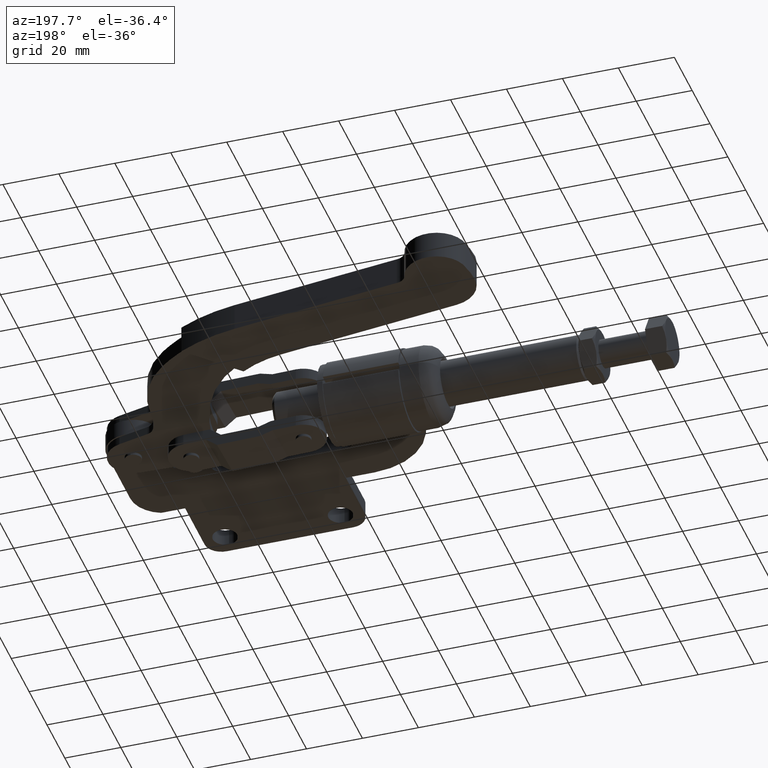
[diagram: clean part render]
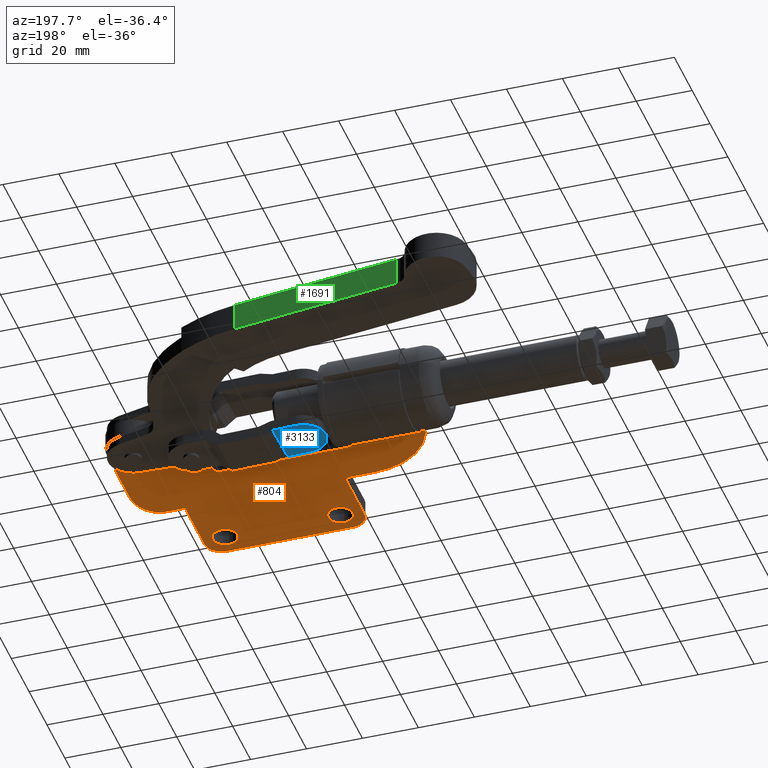
[diagram: same view with three faces highlighted in distinct colors, each labeled with its STEP entity id]
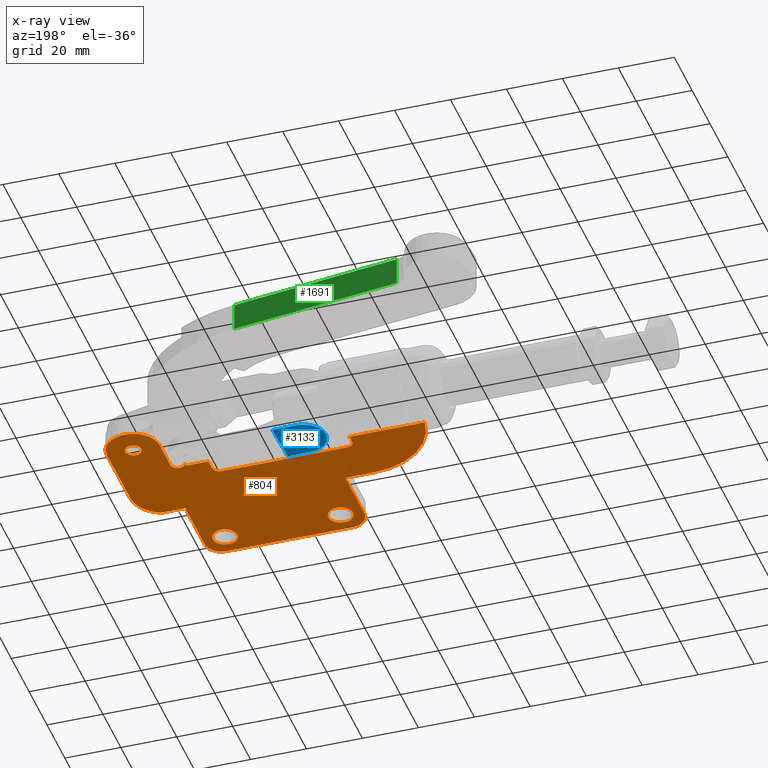
[diagram: x-ray of the same camera — body ghosted, the three highlighted faces saturated]
A machine part, auxiliary view with three faces highlighted in distinct colors.
The next image is the same camera in x-ray (body ghosted, the three faces saturated) — at least one of them is partly hidden behind the body in this view.
Their STEP definitions:

[orange] entity #804 — the highlighted planar face has unit normal (0, -0, -1).
#112 = VERTEX_POINT ( 'NONE', #5971 ) ;
#124 = CARTESIAN_POINT ( 'NONE',  ( -109.0000000000000000, 4.200000000001617600, -3.000000000000006200 ) ) ;
#160 = CARTESIAN_POINT ( 'NONE',  ( -7.250000000000006200, 4.180131579734284000, -2.999999999999984000 ) ) ;
#203 = CARTESIAN_POINT ( 'NONE',  ( -16.25000000000001100, -17.59999999999993000, -2.999999999999980500 ) ) ;
#214 = AXIS2_PLACEMENT_3D ( 'NONE', #7111, #8506, #3740 ) ;
#280 = LINE ( 'NONE', #124, #1846 ) ;
#335 = VERTEX_POINT ( 'NONE', #6947 ) ;
#357 = AXIS2_PLACEMENT_3D ( 'NONE', #7686, #1502, #3072 ) ;
#404 = CARTESIAN_POINT ( 'NONE',  ( -5.963785294056692600E-015, -23.59999999999998000, -2.999999999999974200 ) ) ;
#407 = AXIS2_PLACEMENT_3D ( 'NONE', #493, #5938, #1151 ) ;
#410 = AXIS2_PLACEMENT_3D ( 'NONE', #8006, #3957, #8680 ) ;
#422 = CARTESIAN_POINT ( 'NONE',  ( -6.632134760864691900, 41.20000000000002400, -3.000000000000028400 ) ) ;
#449 = AXIS2_PLACEMENT_3D ( 'NONE', #3915, #3198, #6546 ) ;
#462 = CARTESIAN_POINT ( 'NONE',  ( -40.58836422143850300, 27.40000000000002300, -2.999999999999964900 ) ) ;
#493 = CARTESIAN_POINT ( 'NONE',  ( -79.50000000000484600, 23.20000000000014500, -3.000000000000021800 ) ) ;
#503 = VERTEX_POINT ( 'NONE', #2097 ) ;
#510 = EDGE_CURVE ( 'NONE', #6389, #503, #5581, .T. ) ;
#522 = VERTEX_POINT ( 'NONE', #2953 ) ;
#541 = CARTESIAN_POINT ( 'NONE',  ( -19.00000000000097000, 29.29999999999998300, -3.000000000000034600 ) ) ;
#650 = EDGE_LOOP ( 'NONE', ( #3309, #7417 ) ) ;
#705 = CARTESIAN_POINT ( 'NONE',  ( -32.00000000000473900, 23.20000000000007400, -3.000000000000024400 ) ) ;
#713 = ORIENTED_EDGE ( 'NONE', *, *, #2009, .F. ) ;
#723 = CIRCLE ( 'NONE', #910, 2.499999999999426200 ) ;
#725 = CIRCLE ( 'NONE', #967, 6.000000000000001800 ) ;
#730 = DIRECTION ( 'NONE',  ( -1.000000000000000000, 1.497259106820870000E-015, -8.633825298910366700E-017 ) ) ;
#749 = EDGE_CURVE ( 'NONE', #1611, #7322, #1100, .T. ) ;
#753 = DIRECTION ( 'NONE',  ( 0.0000000000000000000, -1.000000000000000000, 7.885106708985478200E-016 ) ) ;
#772 = CARTESIAN_POINT ( 'NONE',  ( -73.45000000000503300, -17.59999999999991300, -2.999999999999985800 ) ) ;
#804 = ADVANCED_FACE ( 'NONE', ( #7720, #2493, #6329, #5907 ), #8061, .T. ) ;
#849 = EDGE_CURVE ( 'NONE', #2248, #5280, #280, .T. ) ;
#865 = ORIENTED_EDGE ( 'NONE', *, *, #2074, .T. ) ;
#902 = DIRECTION ( 'NONE',  ( -8.633825298910245900E-017, 8.048628660897816600E-016, 1.000000000000000000 ) ) ;
#910 = AXIS2_PLACEMENT_3D ( 'NONE', #1074, #5853, #1763 ) ;
#929 = VERTEX_POINT ( 'NONE', #2840 ) ;
#933 = CARTESIAN_POINT ( 'NONE',  ( -24.20000000000504800, -20.04999999999997600, -2.999999999999979100 ) ) ;
#967 = AXIS2_PLACEMENT_3D ( 'NONE', #1741, #6495, #2439 ) ;
#993 = CIRCLE ( 'NONE', #4297, 4.400000000000001200 ) ;
#1069 = CARTESIAN_POINT ( 'NONE',  ( -16.25000000000000700, 4.200000000001606900, -2.999999999999997800 ) ) ;
#1074 = CARTESIAN_POINT ( 'NONE',  ( -21.49999999999944900, 29.29999999999998600, -3.000000000000020900 ) ) ;
#1075 = AXIS2_PLACEMENT_3D ( 'NONE', #3126, #3037, #2469 ) ;
#1082 = ORIENTED_EDGE ( 'NONE', *, *, #4182, .F. ) ;
#1089 = VECTOR ( 'NONE', #7358, 1000.000000000000000 ) ;
#1100 = LINE ( 'NONE', #404, #8103 ) ;
#1110 = AXIS2_PLACEMENT_3D ( 'NONE', #4527, #7270, #4544 ) ;
#1131 = DIRECTION ( 'NONE',  ( 8.633825298910245900E-017, -8.066072710864628300E-016, -1.000000000000000000 ) ) ;
#1151 = DIRECTION ( 'NONE',  ( 0.0000000000000000000, -1.000000000000000000, 8.673617379884125200E-016 ) ) ;
#1176 = EDGE_CURVE ( 'NONE', #8072, #4409, #8729, .T. ) ;
#1203 = LINE ( 'NONE', #7129, #4847 ) ;
#1226 = CARTESIAN_POINT ( 'NONE',  ( -0.1499999999999810400, 41.20000000000003800, -3.000000000000020400 ) ) ;
#1228 = EDGE_CURVE ( 'NONE', #5076, #7968, #2903, .T. ) ;
#1288 = ORIENTED_EDGE ( 'NONE', *, *, #2785, .T. ) ;
#1306 = ORIENTED_EDGE ( 'NONE', *, *, #8312, .F. ) ;
#1422 = EDGE_LOOP ( 'NONE', ( #3969, #865 ) ) ;
#1454 = CARTESIAN_POINT ( 'NONE',  ( -108.9655025418542500, 26.30000000000010000, -3.000000000000026600 ) ) ;
#1502 = DIRECTION ( 'NONE',  ( -8.633825298910245900E-017, 8.048628660897816600E-016, 1.000000000000000000 ) ) ;
#1514 = DIRECTION ( 'NONE',  ( -2.636779683484748300E-016, -1.000000000000000000, 8.048628660897816600E-016 ) ) ;
#1523 = EDGE_CURVE ( 'NONE', #4857, #2984, #5489, .T. ) ;
#1524 = CIRCLE ( 'NONE', #357, 5.999999999999998200 ) ;
#1545 = DIRECTION ( 'NONE',  ( 1.000000000000000000, -2.636779683484747800E-016, 8.633825298910266800E-017 ) ) ;
#1582 = CARTESIAN_POINT ( 'NONE',  ( -24.20000000000504800, -11.24999999999997200, -2.999999999999986200 ) ) ;
#1602 = CIRCLE ( 'NONE', #7454, 4.400000000000001200 ) ;
#1607 = ORIENTED_EDGE ( 'NONE', *, *, #849, .F. ) ;
#1611 = VERTEX_POINT ( 'NONE', #6145 ) ;
#1641 = ORIENTED_EDGE ( 'NONE', *, *, #510, .T. ) ;
#1717 = EDGE_CURVE ( 'NONE', #7322, #5076, #1524, .T. ) ;
#1731 = LINE ( 'NONE', #160, #3567 ) ;
#1741 = CARTESIAN_POINT ( 'NONE',  ( -67.45000000000503300, -17.59999999999996200, -2.999999999999984900 ) ) ;
#1763 = DIRECTION ( 'NONE',  ( -1.387778780781764200E-015, -1.000000000000000000, 8.673617379886026400E-016 ) ) ;
#1846 = VECTOR ( 'NONE', #7523, 1000.000000000000000 ) ;
#1885 = VERTEX_POINT ( 'NONE', #3589 ) ;
#1927 = AXIS2_PLACEMENT_3D ( 'NONE', #4978, #902, #5669 ) ;
#1948 = CIRCLE ( 'NONE', #1110, 2.499999999999426200 ) ;
#1969 = VECTOR ( 'NONE', #1514, 1000.000000000000000 ) ;
#2009 = EDGE_CURVE ( 'NONE', #4723, #2248, #8438, .T. ) ;
#2036 = DIRECTION ( 'NONE',  ( -2.636779683484748800E-016, -1.000000000000000000, 8.066072710864628300E-016 ) ) ;
#2071 = CARTESIAN_POINT ( 'NONE',  ( -82.00000000000477500, 50.70000000000010900, -3.000000000000040900 ) ) ;
#2074 = EDGE_CURVE ( 'NONE', #7246, #4919, #993, .T. ) ;
#2097 = CARTESIAN_POINT ( 'NONE',  ( -0.1499999999999931100, 15.20000000000107200, -3.000000000000005300 ) ) ;
#2187 = ORIENTED_EDGE ( 'NONE', *, *, #3563, .F. ) ;
#2197 = CIRCLE ( 'NONE', #7326, 2.867865239135299200 ) ;
#2199 = LINE ( 'NONE', #2071, #5592 ) ;
#2216 = DIRECTION ( 'NONE',  ( -8.633825298910245900E-017, 8.048628660897816600E-016, 1.000000000000000000 ) ) ;
#2248 = VERTEX_POINT ( 'NONE', #5117 ) ;
#2349 = CARTESIAN_POINT ( 'NONE',  ( -22.25000000000005700, -23.59999999999997300, -2.999999999999975600 ) ) ;
#2378 = VECTOR ( 'NONE', #8650, 1000.000000000000000 ) ;
#2385 = DIRECTION ( 'NONE',  ( 2.636779683484748300E-016, 1.000000000000000000, -8.066072710864628300E-016 ) ) ;
#2439 = DIRECTION ( 'NONE',  ( 0.0000000000000000000, -1.000000000000000000, 7.950815931560363500E-016 ) ) ;
#2469 = DIRECTION ( 'NONE',  ( 0.0000000000000000000, -1.000000000000000000, 8.114388797713995800E-016 ) ) ;
#2479 = AXIS2_PLACEMENT_3D ( 'NONE', #8587, #8467, #5252 ) ;
#2493 = FACE_BOUND ( 'NONE', #1422, .T. ) ;
#2586 = EDGE_CURVE ( 'NONE', #4807, #7968, #1731, .T. ) ;
#2593 = CARTESIAN_POINT ( 'NONE',  ( -16.25000000000000700, 1.870178387393377400E-015, -2.999999999999994200 ) ) ;
#2692 = VECTOR ( 'NONE', #2385, 1000.000000000000000 ) ;
#2695 = ORIENTED_EDGE ( 'NONE', *, *, #4916, .T. ) ;
#2785 = EDGE_CURVE ( 'NONE', #5428, #1885, #4083, .T. ) ;
#2787 = CARTESIAN_POINT ( 'NONE',  ( -9.574999999999974400, 41.62520474801519300, -3.000000000000021300 ) ) ;
#2791 = CARTESIAN_POINT ( 'NONE',  ( -0.1499999999999837300, 50.70000000000008800, -3.000000000000033800 ) ) ;
#2840 = CARTESIAN_POINT ( 'NONE',  ( -21.49999999999944900, 26.80000000000055800, -3.000000000000018700 ) ) ;
#2867 = LINE ( 'NONE', #4139, #4274 ) ;
#2897 = ORIENTED_EDGE ( 'NONE', *, *, #3329, .T. ) ;
#2903 = LINE ( 'NONE', #2593, #1089 ) ;
#2953 = CARTESIAN_POINT ( 'NONE',  ( -0.5732896807037204400, 44.45020658964465100, -3.000000000000030600 ) ) ;
#2959 = CARTESIAN_POINT ( 'NONE',  ( -65.50000000000504500, -15.64999999999996300, -2.999999999999986200 ) ) ;
#2984 = VERTEX_POINT ( 'NONE', #705 ) ;
#3005 = LINE ( 'NONE', #7008, #2378 ) ;
#3037 = DIRECTION ( 'NONE',  ( -8.633825298910245900E-017, 8.066072710864628300E-016, 1.000000000000000000 ) ) ;
#3072 = DIRECTION ( 'NONE',  ( 0.0000000000000000000, -1.000000000000000000, 7.950815931560368500E-016 ) ) ;
#3126 = CARTESIAN_POINT ( 'NONE',  ( -84.02807541134794200, 29.31957628709033500, -3.000000000000026600 ) ) ;
#3127 = CARTESIAN_POINT ( 'NONE',  ( -32.00000000000488100, 27.40000000000002000, -2.999999999999964000 ) ) ;
#3171 = ORIENTED_EDGE ( 'NONE', *, *, #3270, .T. ) ;
#3198 = DIRECTION ( 'NONE',  ( -8.633825298910245900E-017, 8.066072710864628300E-016, 1.000000000000000000 ) ) ;
#3210 = EDGE_CURVE ( 'NONE', #2984, #6072, #7404, .T. ) ;
#3251 = DIRECTION ( 'NONE',  ( -2.636779683484748300E-016, -1.000000000000000000, 8.066072710864628300E-016 ) ) ;
#3270 = EDGE_CURVE ( 'NONE', #503, #4807, #8753, .T. ) ;
#3309 = ORIENTED_EDGE ( 'NONE', *, *, #7786, .T. ) ;
#3329 = EDGE_CURVE ( 'NONE', #522, #6389, #6756, .T. ) ;
#3423 = ORIENTED_EDGE ( 'NONE', *, *, #4019, .F. ) ;
#3443 = ORIENTED_EDGE ( 'NONE', *, *, #1523, .F. ) ;
#3445 = ORIENTED_EDGE ( 'NONE', *, *, #8595, .F. ) ;
#3563 = EDGE_CURVE ( 'NONE', #5280, #4465, #3583, .T. ) ;
#3564 = EDGE_CURVE ( 'NONE', #7582, #8627, #2197, .T. ) ;
#3567 = VECTOR ( 'NONE', #6402, 1000.000000000000100 ) ;
#3583 = LINE ( 'NONE', #5576, #1969 ) ;
#3589 = CARTESIAN_POINT ( 'NONE',  ( -23.99999999999887700, 29.29999999999998600, -3.000000000000014200 ) ) ;
#3740 = DIRECTION ( 'NONE',  ( -2.775557561562857800E-015, -1.000000000000000000, 8.673617379883930900E-016 ) ) ;
#3745 = CARTESIAN_POINT ( 'NONE',  ( -73.45000000000503300, 4.200000000001607800, -3.000000000000003100 ) ) ;
#3792 = VECTOR ( 'NONE', #2036, 1000.000000000000000 ) ;
#3883 = CIRCLE ( 'NONE', #7387, 4.400000000000004800 ) ;
#3915 = CARTESIAN_POINT ( 'NONE',  ( -9.500000000000001800, 41.20000000000001000, -3.000000000000029300 ) ) ;
#3957 = DIRECTION ( 'NONE',  ( -8.633825298910245900E-017, 8.066072710864628300E-016, 1.000000000000000000 ) ) ;
#3969 = ORIENTED_EDGE ( 'NONE', *, *, #5832, .T. ) ;
#4019 = EDGE_CURVE ( 'NONE', #112, #4723, #1203, .T. ) ;
#4033 = DIRECTION ( 'NONE',  ( 0.0000000000000000000, 1.000000000000000000, -7.561039882141786300E-016 ) ) ;
#4075 = ORIENTED_EDGE ( 'NONE', *, *, #5082, .F. ) ;
#4083 = LINE ( 'NONE', #5533, #2692 ) ;
#4139 = CARTESIAN_POINT ( 'NONE',  ( -109.0000000000000400, 20.70000000000018400, -3.000000000000019500 ) ) ;
#4173 = CIRCLE ( 'NONE', #449, 9.500000000000008900 ) ;
#4182 = EDGE_CURVE ( 'NONE', #4409, #112, #2199, .T. ) ;
#4225 = DIRECTION ( 'NONE',  ( -8.633825298910245900E-017, 8.048628660897816600E-016, 1.000000000000000000 ) ) ;
#4274 = VECTOR ( 'NONE', #730, 1000.000000000000000 ) ;
#4297 = AXIS2_PLACEMENT_3D ( 'NONE', #8214, #4689, #7180 ) ;
#4306 = VERTEX_POINT ( 'NONE', #6540 ) ;
#4409 = VERTEX_POINT ( 'NONE', #7419 ) ;
#4465 = VERTEX_POINT ( 'NONE', #772 ) ;
#4475 = CARTESIAN_POINT ( 'NONE',  ( -23.99999999999981900, 27.40000000000001600, -3.000000000000017300 ) ) ;
#4527 = CARTESIAN_POINT ( 'NONE',  ( -21.49999999999944900, 29.29999999999998600, -3.000000000000020900 ) ) ;
#4544 = DIRECTION ( 'NONE',  ( 0.0000000000000000000, -1.000000000000000000, 8.673617379886026400E-016 ) ) ;
#4610 = ORIENTED_EDGE ( 'NONE', *, *, #749, .F. ) ;
#4660 = CARTESIAN_POINT ( 'NONE',  ( -34.50000000000479600, 20.70000000000004900, -3.000000000000014700 ) ) ;
#4689 = DIRECTION ( 'NONE',  ( -8.633825298910245900E-017, 8.048628660897816600E-016, 1.000000000000000000 ) ) ;
#4723 = VERTEX_POINT ( 'NONE', #1454 ) ;
#4751 = EDGE_CURVE ( 'NONE', #4306, #7268, #3883, .T. ) ;
#4770 = CIRCLE ( 'NONE', #410, 2.867865239135299200 ) ;
#4807 = VERTEX_POINT ( 'NONE', #6058 ) ;
#4833 = VECTOR ( 'NONE', #5939, 1000.000000000000000 ) ;
#4847 = VECTOR ( 'NONE', #7107, 1000.000000000000000 ) ;
#4857 = VERTEX_POINT ( 'NONE', #3127 ) ;
#4882 = ORIENTED_EDGE ( 'NONE', *, *, #5758, .F. ) ;
#4901 = DIRECTION ( 'NONE',  ( 0.0000000000000000000, -1.000000000000000000, 7.885106708985484100E-016 ) ) ;
#4916 = EDGE_CURVE ( 'NONE', #4857, #5428, #8433, .T. ) ;
#4919 = VERTEX_POINT ( 'NONE', #933 ) ;
#4978 = CARTESIAN_POINT ( 'NONE',  ( -65.50000000000504500, -15.64999999999996300, -2.999999999999986200 ) ) ;
#5076 = VERTEX_POINT ( 'NONE', #203 ) ;
#5082 = EDGE_CURVE ( 'NONE', #929, #1885, #1948, .T. ) ;
#5102 = VERTEX_POINT ( 'NONE', #541 ) ;
#5117 = CARTESIAN_POINT ( 'NONE',  ( -84.02807541134795600, 4.200000000001615800, -3.000000000000003600 ) ) ;
#5170 = ORIENTED_EDGE ( 'NONE', *, *, #1717, .F. ) ;
#5215 = ORIENTED_EDGE ( 'NONE', *, *, #3210, .F. ) ;
#5227 = CARTESIAN_POINT ( 'NONE',  ( -79.50000000000484600, 20.70000000000014100, -3.000000000000018700 ) ) ;
#5252 = DIRECTION ( 'NONE',  ( 1.463901667490970200E-015, -1.000000000000000000, 8.051459171200335300E-016 ) ) ;
#5280 = VERTEX_POINT ( 'NONE', #3745 ) ;
#5298 = CIRCLE ( 'NONE', #1927, 4.400000000000004800 ) ;
#5306 = CARTESIAN_POINT ( 'NONE',  ( -12.36786523913528900, 41.20000000000002400, -3.000000000000029300 ) ) ;
#5395 = CARTESIAN_POINT ( 'NONE',  ( -9.499999999999991100, 41.20000000000002400, -3.000000000000028900 ) ) ;
#5421 = DIRECTION ( 'NONE',  ( -2.941896325621044400E-015, -1.000000000000000000, 8.274083415809187400E-016 ) ) ;
#5428 = VERTEX_POINT ( 'NONE', #4475 ) ;
#5489 = LINE ( 'NONE', #6014, #7092 ) ;
#5519 = DIRECTION ( 'NONE',  ( -8.633825298910245900E-017, 8.066072710864628300E-016, 1.000000000000000000 ) ) ;
#5533 = CARTESIAN_POINT ( 'NONE',  ( -23.99999999999981200, 50.70000000000009500, -3.000000000000036000 ) ) ;
#5576 = CARTESIAN_POINT ( 'NONE',  ( -73.45000000000503300, 1.695255817692746200E-014, -2.999999999999999600 ) ) ;
#5581 = LINE ( 'NONE', #2791, #3792 ) ;
#5592 = VECTOR ( 'NONE', #6809, 1000.000000000000000 ) ;
#5669 = DIRECTION ( 'NONE',  ( 0.0000000000000000000, -1.000000000000000000, 7.885106708985478200E-016 ) ) ;
#5678 = AXIS2_PLACEMENT_3D ( 'NONE', #2787, #1131, #5421 ) ;
#5758 = EDGE_CURVE ( 'NONE', #335, #5102, #3005, .T. ) ;
#5759 = AXIS2_PLACEMENT_3D ( 'NONE', #8493, #6510, #3251 ) ;
#5832 = EDGE_CURVE ( 'NONE', #4919, #7246, #1602, .T. ) ;
#5853 = DIRECTION ( 'NONE',  ( 8.633825298910245900E-017, -8.066072710864628300E-016, -1.000000000000000000 ) ) ;
#5874 = EDGE_CURVE ( 'NONE', #522, #335, #4173, .T. ) ;
#5907 = FACE_BOUND ( 'NONE', #8331, .T. ) ;
#5938 = DIRECTION ( 'NONE',  ( 8.633825298910245900E-017, -8.066072710864628300E-016, -1.000000000000000000 ) ) ;
#5939 = DIRECTION ( 'NONE',  ( 1.000000000000000000, -2.636779683484747800E-016, 8.633825298910266800E-017 ) ) ;
#5971 = CARTESIAN_POINT ( 'NONE',  ( -82.00000000000477500, 26.30000000000009300, -3.000000000000016900 ) ) ;
#6014 = CARTESIAN_POINT ( 'NONE',  ( -32.00000000000548500, 50.70000000000217700, -3.000000000000036400 ) ) ;
#6058 = CARTESIAN_POINT ( 'NONE',  ( -7.640641571138329100, 4.180993960946423700, -2.999999999999984500 ) ) ;
#6072 = VERTEX_POINT ( 'NONE', #4660 ) ;
#6145 = CARTESIAN_POINT ( 'NONE',  ( -67.45000000000499100, -23.59999999999996200, -2.999999999999979600 ) ) ;
#6329 = FACE_OUTER_BOUND ( 'NONE', #7570, .T. ) ;
#6361 = CARTESIAN_POINT ( 'NONE',  ( -65.50000000000504500, -20.04999999999996900, -2.999999999999982700 ) ) ;
#6389 = VERTEX_POINT ( 'NONE', #1226 ) ;
#6402 = DIRECTION ( 'NONE',  ( -0.9999975632550551800, 0.002207596872561105000, -7.762224001114893000E-017 ) ) ;
#6495 = DIRECTION ( 'NONE',  ( -8.633825298910245900E-017, 8.048628660897816600E-016, 1.000000000000000000 ) ) ;
#6510 = DIRECTION ( 'NONE',  ( 8.633825298910245900E-017, -8.066072710864628300E-016, -1.000000000000000000 ) ) ;
#6540 = CARTESIAN_POINT ( 'NONE',  ( -65.50000000000504500, -11.24999999999995700, -2.999999999999989800 ) ) ;
#6546 = DIRECTION ( 'NONE',  ( -1.826024711554532200E-016, -1.000000000000000000, 8.217111201995394000E-016 ) ) ;
#6756 = CIRCLE ( 'NONE', #5678, 9.434586587537076200 ) ;
#6809 = DIRECTION ( 'NONE',  ( 2.636779683484748300E-016, 1.000000000000000000, -8.066072710864628300E-016 ) ) ;
#6947 = CARTESIAN_POINT ( 'NONE',  ( -19.00000000000001100, 41.20000000000001700, -3.000000000000009300 ) ) ;
#6965 = ORIENTED_EDGE ( 'NONE', *, *, #3564, .T. ) ;
#7008 = CARTESIAN_POINT ( 'NONE',  ( -18.99999999999924000, 50.69999999999284800, -3.000000000000035500 ) ) ;
#7014 = ORIENTED_EDGE ( 'NONE', *, *, #1228, .F. ) ;
#7092 = VECTOR ( 'NONE', #7530, 1000.000000000000000 ) ;
#7107 = DIRECTION ( 'NONE',  ( -1.000000000000000000, 2.636779683484747800E-016, -8.633825298910266800E-017 ) ) ;
#7111 = CARTESIAN_POINT ( 'NONE',  ( -34.50000000000479600, 23.20000000000007700, -3.000000000000017800 ) ) ;
#7129 = CARTESIAN_POINT ( 'NONE',  ( -108.9999999999999900, 26.30000000000010000, -3.000000000000024000 ) ) ;
#7180 = DIRECTION ( 'NONE',  ( 0.0000000000000000000, -1.000000000000000000, 7.885106708985484100E-016 ) ) ;
#7246 = VERTEX_POINT ( 'NONE', #1582 ) ;
#7268 = VERTEX_POINT ( 'NONE', #6361 ) ;
#7270 = DIRECTION ( 'NONE',  ( 8.633825298910245900E-017, -8.066072710864628300E-016, -1.000000000000000000 ) ) ;
#7322 = VERTEX_POINT ( 'NONE', #2349 ) ;
#7326 = AXIS2_PLACEMENT_3D ( 'NONE', #5395, #5519, #4033 ) ;
#7358 = DIRECTION ( 'NONE',  ( 2.636779683484748300E-016, 1.000000000000000000, -8.048628660897816600E-016 ) ) ;
#7387 = AXIS2_PLACEMENT_3D ( 'NONE', #2959, #2216, #753 ) ;
#7396 = ORIENTED_EDGE ( 'NONE', *, *, #2586, .T. ) ;
#7404 = CIRCLE ( 'NONE', #214, 2.500000000000030200 ) ;
#7417 = ORIENTED_EDGE ( 'NONE', *, *, #4751, .T. ) ;
#7419 = CARTESIAN_POINT ( 'NONE',  ( -82.00000000000481700, 23.20000000000014500, -3.000000000000014700 ) ) ;
#7454 = AXIS2_PLACEMENT_3D ( 'NONE', #8025, #4225, #4901 ) ;
#7466 = EDGE_CURVE ( 'NONE', #5102, #929, #723, .T. ) ;
#7523 = DIRECTION ( 'NONE',  ( 1.000000000000000000, -2.636779683484747800E-016, 8.633825298910266800E-017 ) ) ;
#7530 = DIRECTION ( 'NONE',  ( 2.681493238836280300E-014, -1.000000000000000000, 8.066072710864651900E-016 ) ) ;
#7570 = EDGE_LOOP ( 'NONE', ( #3171, #7396, #7014, #5170, #4610, #3445, #2187, #1607, #713, #3423, #1082, #8701, #1306, #5215, #3443, #2695, #1288, #4075, #7829, #4882, #7580, #2897, #1641 ) ) ;
#7580 = ORIENTED_EDGE ( 'NONE', *, *, #5874, .F. ) ;
#7582 = VERTEX_POINT ( 'NONE', #5306 ) ;
#7686 = CARTESIAN_POINT ( 'NONE',  ( -22.25000000000001100, -17.59999999999997300, -2.999999999999980900 ) ) ;
#7720 = FACE_BOUND ( 'NONE', #650, .T. ) ;
#7786 = EDGE_CURVE ( 'NONE', #7268, #4306, #5298, .T. ) ;
#7829 = ORIENTED_EDGE ( 'NONE', *, *, #7466, .F. ) ;
#7968 = VERTEX_POINT ( 'NONE', #1069 ) ;
#8006 = CARTESIAN_POINT ( 'NONE',  ( -9.499999999999991100, 41.20000000000002400, -3.000000000000028900 ) ) ;
#8025 = CARTESIAN_POINT ( 'NONE',  ( -24.20000000000504800, -15.64999999999997400, -2.999999999999982700 ) ) ;
#8061 = PLANE ( 'NONE',  #5759 ) ;
#8072 = VERTEX_POINT ( 'NONE', #5227 ) ;
#8103 = VECTOR ( 'NONE', #1545, 1000.000000000000000 ) ;
#8153 = EDGE_CURVE ( 'NONE', #8627, #7582, #4770, .T. ) ;
#8214 = CARTESIAN_POINT ( 'NONE',  ( -24.20000000000504800, -15.64999999999997400, -2.999999999999982700 ) ) ;
#8312 = EDGE_CURVE ( 'NONE', #6072, #8072, #2867, .T. ) ;
#8331 = EDGE_LOOP ( 'NONE', ( #8384, #6965 ) ) ;
#8384 = ORIENTED_EDGE ( 'NONE', *, *, #8153, .T. ) ;
#8433 = LINE ( 'NONE', #462, #4833 ) ;
#8438 = CIRCLE ( 'NONE', #1075, 25.11957628708871900 ) ;
#8467 = DIRECTION ( 'NONE',  ( 8.633825298910245900E-017, -8.066072710864628300E-016, -1.000000000000000000 ) ) ;
#8493 = CARTESIAN_POINT ( 'NONE',  ( -108.9999999999999900, 50.70000000000011700, -3.000000000000043500 ) ) ;
#8506 = DIRECTION ( 'NONE',  ( 8.633825298910245900E-017, -8.066072710864628300E-016, -1.000000000000000000 ) ) ;
#8587 = CARTESIAN_POINT ( 'NONE',  ( -12.00000000000003900, 15.20000000000142900, -3.000000000000007500 ) ) ;
#8595 = EDGE_CURVE ( 'NONE', #4465, #1611, #725, .T. ) ;
#8627 = VERTEX_POINT ( 'NONE', #422 ) ;
#8650 = DIRECTION ( 'NONE',  ( -8.073152324054972600E-014, -1.000000000000000000, 8.066072710864559300E-016 ) ) ;
#8680 = DIRECTION ( 'NONE',  ( 0.0000000000000000000, 1.000000000000000000, -7.561039882141786300E-016 ) ) ;
#8701 = ORIENTED_EDGE ( 'NONE', *, *, #1176, .F. ) ;
#8729 = CIRCLE ( 'NONE', #407, 2.499999999999974200 ) ;
#8753 = CIRCLE ( 'NONE', #2479, 11.85000000000005100 ) ;

[blue] entity #3133 — the highlighted planar face has unit normal (0, 0, 1).
#142 = EDGE_CURVE ( 'NONE', #2616, #2055, #2712, .T. ) ;
#448 = ORIENTED_EDGE ( 'NONE', *, *, #4631, .F. ) ;
#474 = CARTESIAN_POINT ( 'NONE',  ( -62.27514518943448300, 33.26647596525875600, -11.85000000000023600 ) ) ;
#608 = ORIENTED_EDGE ( 'NONE', *, *, #4195, .F. ) ;
#833 = CIRCLE ( 'NONE', #6816, 8.000000000000021300 ) ;
#1380 = CARTESIAN_POINT ( 'NONE',  ( -70.46971373799981100, 41.49000000000016500, -11.85000000000020900 ) ) ;
#1629 = DIRECTION ( 'NONE',  ( 0.02691358024692538900, 0.9996377639916832500, -1.214801189592765700E-016 ) ) ;
#1854 = VERTEX_POINT ( 'NONE', #2883 ) ;
#2005 = DIRECTION ( 'NONE',  ( -3.235760592315522000E-015, -3.440667993655535100E-017, -1.000000000000000000 ) ) ;
#2055 = VERTEX_POINT ( 'NONE', #5628 ) ;
#2073 = DIRECTION ( 'NONE',  ( -3.235760592315522000E-015, -3.440667993655535100E-017, -1.000000000000000000 ) ) ;
#2238 = LINE ( 'NONE', #2974, #5646 ) ;
#2346 = DIRECTION ( 'NONE',  ( -1.000000000000000000, 0.0000000000000000000, 3.154042683594191700E-015 ) ) ;
#2380 = EDGE_LOOP ( 'NONE', ( #608, #448 ) ) ;
#2381 = AXIS2_PLACEMENT_3D ( 'NONE', #3057, #6404, #2346 ) ;
#2606 = FACE_OUTER_BOUND ( 'NONE', #3560, .T. ) ;
#2616 = VERTEX_POINT ( 'NONE', #3228 ) ;
#2712 = LINE ( 'NONE', #474, #7914 ) ;
#2733 = CARTESIAN_POINT ( 'NONE',  ( -70.68502237997610400, 33.49289788806677800, -11.85000000000020700 ) ) ;
#2819 = FACE_BOUND ( 'NONE', #2380, .T. ) ;
#2883 = CARTESIAN_POINT ( 'NONE',  ( -73.21971373799982500, 41.49000000000016500, -11.85000000000020000 ) ) ;
#2912 = CIRCLE ( 'NONE', #2381, 2.750000000000002700 ) ;
#2923 = ORIENTED_EDGE ( 'NONE', *, *, #6423, .T. ) ;
#2974 = CARTESIAN_POINT ( 'NONE',  ( -61.84452790548368700, 49.26068018912578600, -11.85000000000023900 ) ) ;
#2988 = VERTEX_POINT ( 'NONE', #5188 ) ;
#3057 = CARTESIAN_POINT ( 'NONE',  ( -70.46971373799981100, 41.49000000000016500, -11.85000000000020900 ) ) ;
#3096 = DIRECTION ( 'NONE',  ( 3.235760592315501800E-015, 3.440667993655592400E-017, 1.000000000000000000 ) ) ;
#3107 = CARTESIAN_POINT ( 'NONE',  ( -62.27514518943448300, 33.26647596525875600, -11.85000000000023600 ) ) ;
#3133 = ADVANCED_FACE ( 'NONE', ( #2606, #2819 ), #7227, .F. ) ;
#3228 = CARTESIAN_POINT ( 'NONE',  ( -62.27514518943448300, 33.26647596525875600, -11.85000000000023600 ) ) ;
#3560 = EDGE_LOOP ( 'NONE', ( #3921, #3650, #8443, #8407, #2923 ) ) ;
#3590 = CARTESIAN_POINT ( 'NONE',  ( -67.71971373799981100, 41.49000000000016500, -11.85000000000021800 ) ) ;
#3650 = ORIENTED_EDGE ( 'NONE', *, *, #6007, .T. ) ;
#3684 = DIRECTION ( 'NONE',  ( -0.9996377639916832500, 0.02691358024692538900, 3.233662476373170300E-015 ) ) ;
#3843 = DIRECTION ( 'NONE',  ( 0.9996377639916832500, -0.02691358024692538900, -3.233662476373169900E-015 ) ) ;
#3921 = ORIENTED_EDGE ( 'NONE', *, *, #7649, .T. ) ;
#4051 = CARTESIAN_POINT ( 'NONE',  ( -62.27514518943448300, 33.26647596525875600, -11.85000000000023600 ) ) ;
#4055 = CIRCLE ( 'NONE', #5282, 8.000000000000021300 ) ;
#4151 = LINE ( 'NONE', #4051, #8165 ) ;
#4195 = EDGE_CURVE ( 'NONE', #8426, #1854, #7398, .T. ) ;
#4631 = EDGE_CURVE ( 'NONE', #1854, #8426, #2912, .T. ) ;
#5188 = CARTESIAN_POINT ( 'NONE',  ( -78.46681584993355300, 41.70530864197562700, -11.85000000000018400 ) ) ;
#5282 = AXIS2_PLACEMENT_3D ( 'NONE', #8761, #2073, #7545 ) ;
#5473 = VERTEX_POINT ( 'NONE', #2733 ) ;
#5548 = DIRECTION ( 'NONE',  ( -3.235760592315522000E-015, -3.440667993655535100E-017, -1.000000000000000000 ) ) ;
#5628 = CARTESIAN_POINT ( 'NONE',  ( -61.84452790548368700, 49.26068018912578600, -11.85000000000023900 ) ) ;
#5646 = VECTOR ( 'NONE', #3684, 1000.000000000000000 ) ;
#6007 = EDGE_CURVE ( 'NONE', #2988, #7973, #4055, .T. ) ;
#6078 = CARTESIAN_POINT ( 'NONE',  ( -70.46971373800008100, 41.49000000000016500, -11.85000000000021100 ) ) ;
#6404 = DIRECTION ( 'NONE',  ( -3.235760592315522000E-015, -3.440667993655535100E-017, -1.000000000000000000 ) ) ;
#6423 = EDGE_CURVE ( 'NONE', #2616, #5473, #4151, .T. ) ;
#6508 = CARTESIAN_POINT ( 'NONE',  ( -70.25440509602466900, 49.48710211193363100, -11.85000000000020700 ) ) ;
#6674 = EDGE_CURVE ( 'NONE', #2055, #7973, #2238, .T. ) ;
#6754 = DIRECTION ( 'NONE',  ( 0.9996377639916834700, -0.02691358024692502500, -3.252606517456504600E-015 ) ) ;
#6816 = AXIS2_PLACEMENT_3D ( 'NONE', #6078, #2005, #6754 ) ;
#7217 = AXIS2_PLACEMENT_3D ( 'NONE', #3107, #3096, #3843 ) ;
#7227 = PLANE ( 'NONE',  #7217 ) ;
#7398 = CIRCLE ( 'NONE', #8773, 2.750000000000002700 ) ;
#7545 = DIRECTION ( 'NONE',  ( 0.9996377639916834700, -0.02691358024692502500, -3.252606517456504600E-015 ) ) ;
#7649 = EDGE_CURVE ( 'NONE', #5473, #2988, #833, .T. ) ;
#7779 = DIRECTION ( 'NONE',  ( -1.000000000000000000, 0.0000000000000000000, 3.154042683594191700E-015 ) ) ;
#7914 = VECTOR ( 'NONE', #1629, 1000.000000000000000 ) ;
#7973 = VERTEX_POINT ( 'NONE', #6508 ) ;
#8165 = VECTOR ( 'NONE', #8772, 1000.000000000000000 ) ;
#8407 = ORIENTED_EDGE ( 'NONE', *, *, #142, .F. ) ;
#8426 = VERTEX_POINT ( 'NONE', #3590 ) ;
#8443 = ORIENTED_EDGE ( 'NONE', *, *, #6674, .F. ) ;
#8761 = CARTESIAN_POINT ( 'NONE',  ( -70.46971373800008100, 41.49000000000016500, -11.85000000000021100 ) ) ;
#8772 = DIRECTION ( 'NONE',  ( -0.9996377639916832500, 0.02691358024692538900, 3.233662476373170300E-015 ) ) ;
#8773 = AXIS2_PLACEMENT_3D ( 'NONE', #1380, #5548, #7779 ) ;

[green] entity #1691 — the highlighted planar face has unit normal (-0.1349, -0.9909, 0).
#315 = DIRECTION ( 'NONE',  ( 6.415676789143483400E-017, -1.996119609410255400E-016, -1.000000000000000000 ) ) ;
#575 = FACE_OUTER_BOUND ( 'NONE', #7502, .T. ) ;
#973 = EDGE_CURVE ( 'NONE', #5974, #6807, #2793, .T. ) ;
#989 = VECTOR ( 'NONE', #315, 1000.000000000000000 ) ;
#1030 = CARTESIAN_POINT ( 'NONE',  ( -124.9837657323876200, 108.0617364018856100, -5.000000000000132300 ) ) ;
#1059 = ORIENTED_EDGE ( 'NONE', *, *, #7978, .F. ) ;
#1341 = CARTESIAN_POINT ( 'NONE',  ( -124.9837657323876400, 108.0617364018856100, 4.999999999999869400 ) ) ;
#1378 = CARTESIAN_POINT ( 'NONE',  ( -64.40505564650973700, 99.81146864996387100, -5.000000000000126100 ) ) ;
#1404 = CARTESIAN_POINT ( 'NONE',  ( -64.40505564650973700, 99.81146864996387100, -5.000000000000126100 ) ) ;
#1546 = CARTESIAN_POINT ( 'NONE',  ( -64.40505564650973700, 99.81146864996387100, 4.999999999999874800 ) ) ;
#1691 = ADVANCED_FACE ( 'NONE', ( #575 ), #8288, .F. ) ;
#2113 = DIRECTION ( 'NONE',  ( -0.9908530700565708600, 0.1349451501887642700, -9.050659647879548500E-017 ) ) ;
#2444 = VERTEX_POINT ( 'NONE', #1378 ) ;
#2449 = LINE ( 'NONE', #1404, #7667 ) ;
#2503 = ORIENTED_EDGE ( 'NONE', *, *, #8328, .T. ) ;
#2793 = LINE ( 'NONE', #8428, #989 ) ;
#2951 = DIRECTION ( 'NONE',  ( 6.415676789143483400E-017, -1.996119609410255400E-016, -1.000000000000000000 ) ) ;
#3377 = DIRECTION ( 'NONE',  ( -0.1349451501887642700, -0.9908530700565709700, 1.891284796396921800E-016 ) ) ;
#3832 = CARTESIAN_POINT ( 'NONE',  ( -64.40505564650973700, 99.81146864996387100, 4.999999999999874800 ) ) ;
#4024 = VECTOR ( 'NONE', #7875, 1000.000000000000100 ) ;
#4076 = ORIENTED_EDGE ( 'NONE', *, *, #973, .F. ) ;
#5087 = VECTOR ( 'NONE', #2951, 1000.000000000000000 ) ;
#5121 = VERTEX_POINT ( 'NONE', #6661 ) ;
#5483 = ORIENTED_EDGE ( 'NONE', *, *, #7818, .T. ) ;
#5735 = DIRECTION ( 'NONE',  ( 0.9908530700565708600, -0.1349451501887642400, 9.050659647879547300E-017 ) ) ;
#5837 = LINE ( 'NONE', #3832, #4024 ) ;
#5974 = VERTEX_POINT ( 'NONE', #1341 ) ;
#6661 = CARTESIAN_POINT ( 'NONE',  ( -64.40505564650973700, 99.81146864996387100, 4.999999999999874800 ) ) ;
#6807 = VERTEX_POINT ( 'NONE', #1030 ) ;
#6877 = LINE ( 'NONE', #7693, #5087 ) ;
#7502 = EDGE_LOOP ( 'NONE', ( #2503, #4076, #1059, #5483 ) ) ;
#7667 = VECTOR ( 'NONE', #2113, 1000.000000000000100 ) ;
#7693 = CARTESIAN_POINT ( 'NONE',  ( -64.40505564650973700, 99.81146864996387100, 4.999999999999874800 ) ) ;
#7818 = EDGE_CURVE ( 'NONE', #5121, #2444, #6877, .T. ) ;
#7875 = DIRECTION ( 'NONE',  ( -0.9908530700565708600, 0.1349451501887642700, -9.050659647879548500E-017 ) ) ;
#7978 = EDGE_CURVE ( 'NONE', #5121, #5974, #5837, .T. ) ;
#8288 = PLANE ( 'NONE',  #8684 ) ;
#8328 = EDGE_CURVE ( 'NONE', #2444, #6807, #2449, .T. ) ;
#8428 = CARTESIAN_POINT ( 'NONE',  ( -124.9837657323876500, 108.0617364018856300, 4.999999999999868500 ) ) ;
#8684 = AXIS2_PLACEMENT_3D ( 'NONE', #1546, #3377, #5735 ) ;